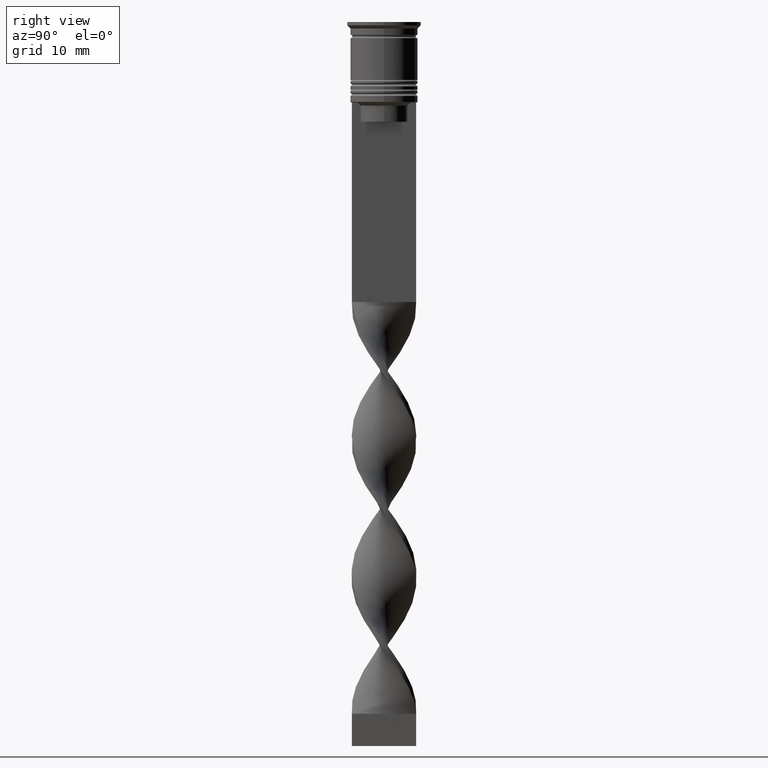
[diagram: clean part render]
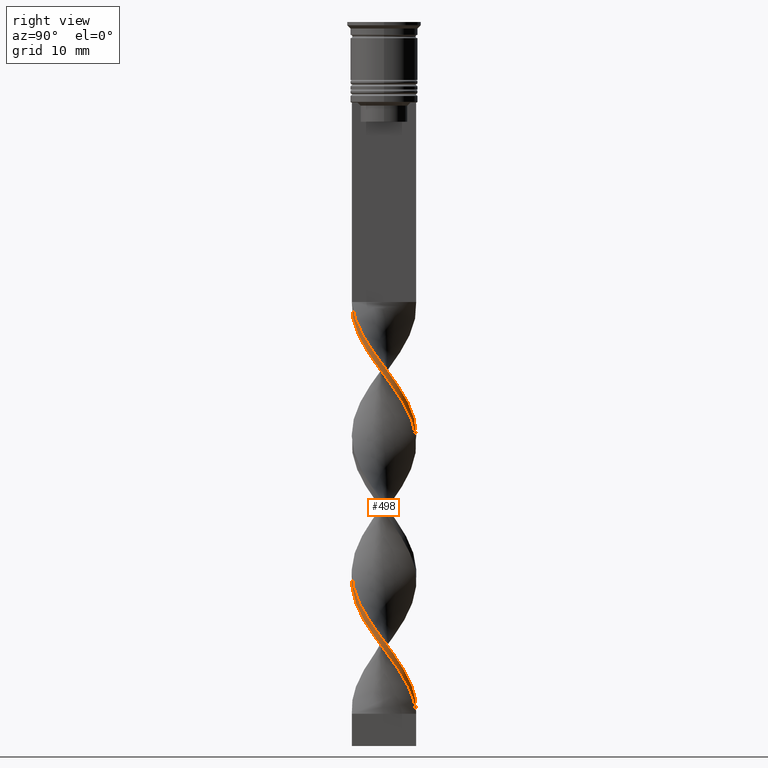
[diagram: same view with one face highlighted and labeled with its STEP entity id]
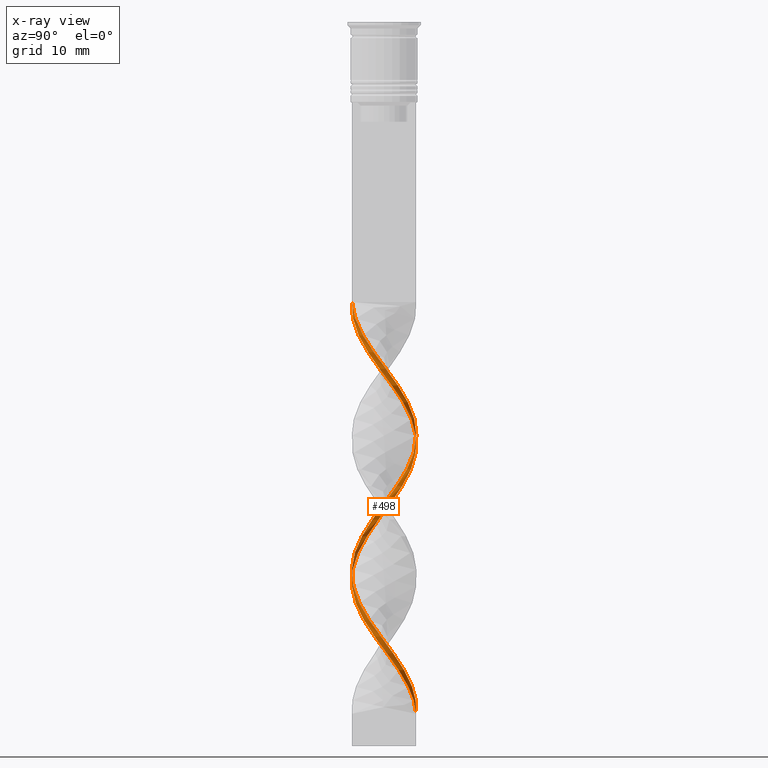
[diagram: x-ray of the same camera — body ghosted, the highlighted face saturated]
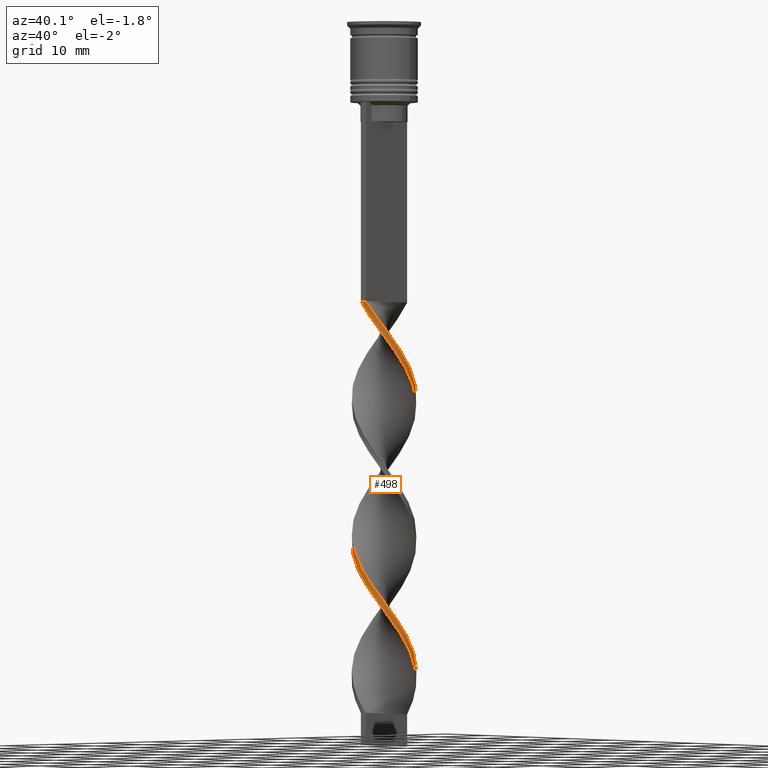
[diagram: same view with one face highlighted and labeled with its STEP entity id]
A machine part, right view. The second image highlights one B-rep face of the part: STEP entity #498.
The next image is the same camera in x-ray: the body ghosted, the highlighted face saturated — about 0% of this face is hidden behind the body in this view.
A second angle (auxiliary view) of the same face is appended — the face is thin or edge-on in the first view.
In plain terms, the highlighted face is a freeform B-spline surface patch.
Its self-contained STEP definition (entity closure, byte-faithful):
#1 = CARTESIAN_POINT ( 'NONE',  ( 0.7111074127247642984, 4.974366919274038068, -63.19230769230768630 ) ) ;
#21 = CARTESIAN_POINT ( 'NONE',  ( 4.398951702833859834, -2.428831800708950883, -50.06410256410256210 ) ) ;
#33 = CARTESIAN_POINT ( 'NONE',  ( 4.398951702833859834, -2.428831800708950883, -50.06410256410256210 ) ) ;
#45 = CARTESIAN_POINT ( 'NONE',  ( 4.225728863414809133, 2.786661774892327692, -57.44871794871794890 ) ) ;
#60 = CARTESIAN_POINT ( 'NONE',  ( 4.104038128678484831, 2.962961240565976428, -101.7564102564102484 ) ) ;
#68 = VERTEX_POINT ( 'NONE', #864 ) ;
#78 = CARTESIAN_POINT ( 'NONE',  ( -0.4999999999999993339, 4.999999999999999112, -107.5000000000000000 ) ) ;
#84 = CARTESIAN_POINT ( 'NONE',  ( 5.023812710617931110, -0.1063289642275889874, -53.34615384615383959 ) ) ;
#88 = CARTESIAN_POINT ( 'NONE',  ( 1.682049230150814534, -4.735051254986480274, -45.14102564102563520 ) ) ;
#103 = CARTESIAN_POINT ( 'NONE',  ( 4.497778769905805163, 2.240532556555384414, -99.29487179487178139 ) ) ;
#109 = CARTESIAN_POINT ( 'NONE',  ( 1.880887847392238132, 4.659641714287932501, -61.55128205128204399 ) ) ;
#119 = CARTESIAN_POINT ( 'NONE',  ( 0.1071099161113048537, 5.060710991611129472, -106.6794871794871824 ) ) ;
#126 = CARTESIAN_POINT ( 'NONE',  ( 0.5000000000000000000, -4.999999999999999112, -86.16666666666667140 ) ) ;
#137 = CARTESIAN_POINT ( 'NONE',  ( 1.107109916111302717, -4.939289008388868751, -86.98717948717948900 ) ) ;
#143 = CARTESIAN_POINT ( 'NONE',  ( -3.436045048790600909, -3.716969558312882782, -80.42307692307691980 ) ) ;
#144 = CARTESIAN_POINT ( 'NONE',  ( -0.5000000000000000000, -4.999999999999999112, -43.50000000000000000 ) ) ;
#156 = CARTESIAN_POINT ( 'NONE',  ( 3.830886956102703245, 3.251815666602606569, -100.9358974358974308 ) ) ;
#161 = CARTESIAN_POINT ( 'NONE',  ( -2.256988544190325019, 4.530813501584093572, -67.29487179487178139 ) ) ;
#176 = CARTESIAN_POINT ( 'NONE',  ( 1.107109916111304715, 4.939289008388868751, -64.01282051282051100 ) ) ;
#177 = CARTESIAN_POINT ( 'NONE',  ( 0.7111074127247624110, -4.974366919274038068, -45.14102564102563520 ) ) ;
#194 = CARTESIAN_POINT ( 'NONE',  ( 2.941357917118423870, -4.074115069975903225, -48.42307692307691269 ) ) ;
#195 = CARTESIAN_POINT ( 'NONE',  ( 4.225728863414809133, -2.786661774892328136, -93.55128205128204399 ) ) ;
#210 = CARTESIAN_POINT ( 'NONE',  ( -3.689868665289527172, -3.410992411735105367, -81.24358974358973740 ) ) ;
#211 = CARTESIAN_POINT ( 'NONE',  ( 2.256988544190328128, 4.530813501584091796, -62.37179487179486870 ) ) ;
#225 = CARTESIAN_POINT ( 'NONE',  ( -2.941357917118423870, 4.074115069975903225, -69.75641025641024839 ) ) ;
#226 = CARTESIAN_POINT ( 'NONE',  ( -3.436045048790596468, 3.716969558312887667, -70.57692307692306599 ) ) ;
#239 = CARTESIAN_POINT ( 'NONE',  ( 1.880887847392238132, 4.659641714287932501, -104.2179487179487012 ) ) ;
#240 = CARTESIAN_POINT ( 'NONE',  ( -4.497778769905805163, 2.240532556555386634, -73.03846153846153300 ) ) ;
#255 = CARTESIAN_POINT ( 'NONE',  ( 2.766343873045447488, 4.194918542244164605, -61.55128205128204399 ) ) ;
#260 = CARTESIAN_POINT ( 'NONE',  ( 0.5000000000000000000, -4.999999999999999112, -43.50000000000000000 ) ) ;
#273 = CARTESIAN_POINT ( 'NONE',  ( -4.852383656948341617, 1.305516313869971912, -73.03846153846153300 ) ) ;
#291 = CARTESIAN_POINT ( 'NONE',  ( 5.010902036907448398, 0.7163302668880174862, -98.47435897435896379 ) ) ;
#306 = CARTESIAN_POINT ( 'NONE',  ( 5.023812710617931110, 0.1063289642275872526, -97.65384615384614619 ) ) ;
#307 = CARTESIAN_POINT ( 'NONE',  ( 5.036723384328413822, 0.5036723384328410935, -54.16666666666666430 ) ) ;
#331 = CARTESIAN_POINT ( 'NONE',  ( 1.880887847392238132, 4.659641714287932501, -61.55128205128204399 ) ) ;
#369 = ORIENTED_EDGE ( 'NONE', *, *, #1020, .T. ) ;
#370 = CARTESIAN_POINT ( 'NONE',  ( -0.4999999999999993339, 4.999999999999999112, -107.5000000000000000 ) ) ;
#372 = CARTESIAN_POINT ( 'NONE',  ( 0.7111074127247642984, 4.974366919274038068, -63.19230769230768630 ) ) ;
#389 = CARTESIAN_POINT ( 'NONE',  ( 4.225728863414809133, 2.786661774892327692, -100.1153846153846132 ) ) ;
#395 = CARTESIAN_POINT ( 'NONE',  ( -4.769828676396804745, -1.694403338218441357, -77.14102564102563520 ) ) ;
#405 = CARTESIAN_POINT ( 'NONE',  ( -5.036723384328413822, -0.5036723384328405384, -75.50000000000000000 ) ) ;
#408 = VERTEX_POINT ( 'NONE', #3510 ) ;
#411 = CARTESIAN_POINT ( 'NONE',  ( 4.693865276989234836, -1.894702360851923117, -93.55128205128204399 ) ) ;
#421 = CARTESIAN_POINT ( 'NONE',  ( 4.903276030362607507, 1.099037838325641392, -97.65384615384614619 ) ) ;
#426 = CARTESIAN_POINT ( 'NONE',  ( 2.941357917118426091, 4.074115069975901449, -59.91025641025640880 ) ) ;
#444 = CARTESIAN_POINT ( 'NONE',  ( 0.7111074127247624110, -4.974366919274038068, -87.80769230769230660 ) ) ;
#460 = CARTESIAN_POINT ( 'NONE',  ( -4.225728863414807357, 2.786661774892329912, -72.21794871794871540 ) ) ;
#461 = CARTESIAN_POINT ( 'NONE',  ( 0.5000000000000006661, 4.999999999999999112, -64.83333333333332860 ) ) ;
#475 = CARTESIAN_POINT ( 'NONE',  ( 3.436045048790597800, -3.716969558312886335, -49.24358974358973740 ) ) ;
#476 = CARTESIAN_POINT ( 'NONE',  ( 3.275699201900567736, 3.859023582904236527, -103.3974358974358836 ) ) ;
#496 = CARTESIAN_POINT ( 'NONE',  ( -3.830886956102703245, 3.251815666602607013, -71.39743589743588359 ) ) ;
#497 = CARTESIAN_POINT ( 'NONE',  ( 3.689868665289526728, 3.410992411735105811, -102.5769230769230660 ) ) ;
#498 = ADVANCED_FACE ( 'NONE', ( #1922 ), #2173, .T. ) ;
#512 = CARTESIAN_POINT ( 'NONE',  ( -0.5000000000000000000, -4.999999999999999112, -43.50000000000000000 ) ) ;
#513 = CARTESIAN_POINT ( 'NONE',  ( 4.104038128678485720, 2.962961240565976428, -101.7564102564102484 ) ) ;
#525 = CARTESIAN_POINT ( 'NONE',  ( 1.107109916111304715, 4.939289008388868751, -106.6794871794871682 ) ) ;
#526 = CARTESIAN_POINT ( 'NONE',  ( -5.023812710617931110, -0.1063289642275845326, -76.32051282051281760 ) ) ;
#541 = CARTESIAN_POINT ( 'NONE',  ( -4.398951702833859834, 2.428831800708950883, -71.39743589743588359 ) ) ;
#567 = CARTESIAN_POINT ( 'NONE',  ( 2.766343873045447044, -4.194918542244165494, -46.78205128205127750 ) ) ;
#576 = CARTESIAN_POINT ( 'NONE',  ( 1.107109916111302717, -4.939289008388868751, -44.32051282051282470 ) ) ;
#620 = CARTESIAN_POINT ( 'NONE',  ( 3.689868665289525396, -3.410992411735107588, -48.42307692307691269 ) ) ;
#640 = CARTESIAN_POINT ( 'NONE',  ( 4.903276030362607507, 1.099037838325641392, -97.65384615384614619 ) ) ;
#660 = CARTESIAN_POINT ( 'NONE',  ( 4.225728863414809133, 2.786661774892327248, -57.44871794871794890 ) ) ;
#677 = CARTESIAN_POINT ( 'NONE',  ( 5.036723384328413822, 0.5036723384328410935, -96.83333333333332860 ) ) ;
#682 = CARTESIAN_POINT ( 'NONE',  ( 3.436045048790599132, 3.716969558312884558, -59.08974358974359120 ) ) ;
#691 = CARTESIAN_POINT ( 'NONE',  ( -4.769828676396803857, -1.694403338218441135, -77.14102564102563520 ) ) ;
#695 = CARTESIAN_POINT ( 'NONE',  ( 3.830886956102703245, 3.251815666602606569, -100.9358974358974308 ) ) ;
#708 = CARTESIAN_POINT ( 'NONE',  ( 2.256988544190325907, -4.530813501584092684, -88.62820512820513841 ) ) ;
#729 = CARTESIAN_POINT ( 'NONE',  ( 4.903276030362607507, -1.099037838325642946, -53.34615384615383959 ) ) ;
#731 = CARTESIAN_POINT ( 'NONE',  ( -1.107109916111305603, -4.939289008388868751, -85.34615384615385381 ) ) ;
#743 = CARTESIAN_POINT ( 'NONE',  ( 4.497778769905805163, -2.240532556555385746, -51.70512820512820440 ) ) ;
#744 = CARTESIAN_POINT ( 'NONE',  ( 4.104038128678485720, 2.962961240565976428, -59.08974358974358410 ) ) ;
#759 = CARTESIAN_POINT ( 'NONE',  ( 3.689868665289526728, 3.410992411735105811, -59.91025641025640880 ) ) ;
#760 = CARTESIAN_POINT ( 'NONE',  ( 2.941357917118423870, -4.074115069975903225, -91.08974358974359120 ) ) ;
#761 = CARTESIAN_POINT ( 'NONE',  ( -0.1666666666666660468, 4.999999999999999112, -107.5000000000000000 ) ) ;
#779 = CARTESIAN_POINT ( 'NONE',  ( -1.315104909338220551, 4.888022846936948440, -67.29487179487178139 ) ) ;
#780 = CARTESIAN_POINT ( 'NONE',  ( 4.852383656948341617, 1.305516313869969469, -99.29487179487178139 ) ) ;
#795 = CARTESIAN_POINT ( 'NONE',  ( 0.7111074127247624110, -4.974366919274038068, -45.14102564102563520 ) ) ;
#796 = CARTESIAN_POINT ( 'NONE',  ( 1.682049230150816088, 4.735051254986480274, -63.19230769230768630 ) ) ;
#808 = CARTESIAN_POINT ( 'NONE',  ( 2.256988544190327683, 4.530813501584091796, -105.0384615384615330 ) ) ;
#810 = CARTESIAN_POINT ( 'NONE',  ( 0.5000000000000000000, -4.999999999999999112, -43.50000000000000000 ) ) ;
#829 = CARTESIAN_POINT ( 'NONE',  ( 5.036723384328412934, -0.5036723384328417596, -96.83333333333332860 ) ) ;
#853 = CARTESIAN_POINT ( 'NONE',  ( 5.010902036907448398, -0.7163302668880181523, -52.52564102564102910 ) ) ;
#864 = CARTESIAN_POINT ( 'NONE',  ( 0.5000000000000006661, 4.999999999999999112, -107.5000000000000000 ) ) ;
#869 = CARTESIAN_POINT ( 'NONE',  ( 4.903276030362607507, -1.099037838325642946, -96.01282051282051100 ) ) ;
#870 = CARTESIAN_POINT ( 'NONE',  ( 2.941357917118426091, 4.074115069975901449, -59.91025641025640880 ) ) ;
#916 = CARTESIAN_POINT ( 'NONE',  ( -2.941357917118426535, -4.074115069975901449, -81.24358974358973740 ) ) ;
#930 = CARTESIAN_POINT ( 'NONE',  ( 2.446670785446252605, 4.431260581638918339, -103.3974358974358836 ) ) ;
#937 = CARTESIAN_POINT ( 'NONE',  ( 5.023812710617931110, -0.1063289642275889874, -96.01282051282051100 ) ) ;
#947 = CARTESIAN_POINT ( 'NONE',  ( 1.682049230150814534, -4.735051254986480274, -87.80769230769230660 ) ) ;
#952 = CARTESIAN_POINT ( 'NONE',  ( -4.225728863414810910, -2.786661774892325028, -78.78205128205127039 ) ) ;
#963 = CARTESIAN_POINT ( 'NONE',  ( 2.941357917118426091, 4.074115069975901449, -102.5769230769230660 ) ) ;
#967 = CARTESIAN_POINT ( 'NONE',  ( 2.766343873045447044, -4.194918542244165494, -89.44871794871794179 ) ) ;
#980 = CARTESIAN_POINT ( 'NONE',  ( 3.436045048790599132, 3.716969558312884558, -101.7564102564102484 ) ) ;
#981 = CARTESIAN_POINT ( 'NONE',  ( 1.315104909338222328, -4.888022846936947552, -45.96153846153845990 ) ) ;
#993 = CARTESIAN_POINT ( 'NONE',  ( 0.5000000000000006661, 4.999999999999999112, -64.83333333333332860 ) ) ;
#995 = B_SPLINE_CURVE_WITH_KNOTS ( 'NONE', 3,
 ( #1341, #761, #2426, #2396 ),
 .UNSPECIFIED., .F., .F.,
 ( 4, 4 ),
 ( 0.000000000000000000, 1.000000000000000000 ),
 .UNSPECIFIED. ) ;
#1013 = CARTESIAN_POINT ( 'NONE',  ( -1.880887847392236800, 4.659641714287933389, -68.11538461538459899 ) ) ;
#1014 = CARTESIAN_POINT ( 'NONE',  ( 3.689868665289526728, 3.410992411735105811, -59.91025641025640880 ) ) ;
#1020 = EDGE_CURVE ( 'NONE', #408, #68, #1658, .T. ) ;
#1027 = CARTESIAN_POINT ( 'NONE',  ( -3.436045048790596468, 3.716969558312887667, -70.57692307692306599 ) ) ;
#1028 = CARTESIAN_POINT ( 'NONE',  ( -0.5000000000000000000, -4.999999999999999112, -86.16666666666667140 ) ) ;
#1040 = CARTESIAN_POINT ( 'NONE',  ( 1.880887847392237244, -4.659641714287933389, -46.78205128205127750 ) ) ;
#1041 = CARTESIAN_POINT ( 'NONE',  ( 4.903276030362607507, -1.099037838325642946, -96.01282051282051100 ) ) ;
#1059 = CARTESIAN_POINT ( 'NONE',  ( -3.275699201900568625, -3.859023582904236527, -82.06410256410255499 ) ) ;
#1060 = CARTESIAN_POINT ( 'NONE',  ( -5.036723384328413822, 0.5036723384328424258, -75.50000000000000000 ) ) ;
#1074 = CARTESIAN_POINT ( 'NONE',  ( 4.497778769905805163, -2.240532556555385746, -94.37179487179486159 ) ) ;
#1075 = CARTESIAN_POINT ( 'NONE',  ( 5.023812710617931110, -0.1063289642275889874, -53.34615384615383959 ) ) ;
#1076 = EDGE_CURVE ( 'NONE', #3278, #3394, #1315, .T. ) ;
#1090 = CARTESIAN_POINT ( 'NONE',  ( 0.1071099161113048537, 5.060710991611129472, -64.01282051282051100 ) ) ;
#1105 = CARTESIAN_POINT ( 'NONE',  ( 2.941357917118423870, -4.074115069975903225, -91.08974358974359120 ) ) ;
#1107 = CARTESIAN_POINT ( 'NONE',  ( 4.693865276989234836, -1.894702360851923340, -50.88461538461537970 ) ) ;
#1128 = CARTESIAN_POINT ( 'NONE',  ( 3.689868665289526728, 3.410992411735105811, -102.5769230769230660 ) ) ;
#1137 = CARTESIAN_POINT ( 'NONE',  ( 0.5000000000000000000, -4.999999999999999112, -43.50000000000000000 ) ) ;
#1145 = CARTESIAN_POINT ( 'NONE',  ( 2.256988544190326351, -4.530813501584092684, -45.96153846153845990 ) ) ;
#1162 = CARTESIAN_POINT ( 'NONE',  ( -4.903276030362609283, -1.099037838325638727, -76.32051282051281760 ) ) ;
#1169 = CARTESIAN_POINT ( 'NONE',  ( -5.023812710617931110, 0.1063289642275907221, -74.67948717948718240 ) ) ;
#1184 = CARTESIAN_POINT ( 'NONE',  ( 4.104038128678484831, -2.962961240565978205, -91.91025641025643722 ) ) ;
#1189 = CARTESIAN_POINT ( 'NONE',  ( -0.1071099161113053949, -5.060710991611130360, -85.34615384615383959 ) ) ;
#1191 = CARTESIAN_POINT ( 'NONE',  ( 3.830886956102703245, -3.251815666602607013, -50.06410256410256210 ) ) ;
#1208 = CARTESIAN_POINT ( 'NONE',  ( -3.275699201900567736, 3.859023582904237415, -68.93589743589743080 ) ) ;
#1217 = CARTESIAN_POINT ( 'NONE',  ( -2.941357917118426535, -4.074115069975901449, -81.24358974358973740 ) ) ;
#1222 = CARTESIAN_POINT ( 'NONE',  ( 4.903276030362607507, 1.099037838325641392, -54.98717948717948190 ) ) ;
#1239 = CARTESIAN_POINT ( 'NONE',  ( 0.5000000000000000000, -4.999999999999999112, -86.16666666666667140 ) ) ;
#1243 = CARTESIAN_POINT ( 'NONE',  ( 0.1071099161113048398, 5.060710991611130360, -64.01282051282051100 ) ) ;
#1257 = CARTESIAN_POINT ( 'NONE',  ( -4.104038128678486608, -2.962961240565973764, -80.42307692307691980 ) ) ;
#1258 = CARTESIAN_POINT ( 'NONE',  ( 2.446670785446252161, -4.431260581638919227, -47.60256410256409509 ) ) ;
#1272 = CARTESIAN_POINT ( 'NONE',  ( -5.010902036907449286, -0.7163302668880155988, -77.14102564102563520 ) ) ;
#1273 = CARTESIAN_POINT ( 'NONE',  ( -1.682049230150818975, -4.735051254986478497, -84.52564102564103621 ) ) ;
#1293 = CARTESIAN_POINT ( 'NONE',  ( -2.766343873045450152, -4.194918542244163717, -82.88461538461537259 ) ) ;
#1294 = CARTESIAN_POINT ( 'NONE',  ( -5.010902036907448398, -0.7163302668880155988, -77.14102564102563520 ) ) ;
#1308 = CARTESIAN_POINT ( 'NONE',  ( 3.830886956102703245, -3.251815666602607013, -50.06410256410256210 ) ) ;
#1309 = CARTESIAN_POINT ( 'NONE',  ( -2.256988544190328572, -4.530813501584091796, -83.70512820512820440 ) ) ;
#1315 =( BOUNDED_CURVE ( )  B_SPLINE_CURVE ( 2, ( #810, #576, #3280, #1145, #1431, #1370, #620, #1947, #21, #1107, #2458, #853, #1075, #307, #1645, #2440, #1392, #45, #2774, #3296, #870, #3032, #331, #1700, #1, #1090, #1413, #2500, #2236, #2517, #2161, #3242, #1890, #2977, #541, #2720, #273, #1354, #3351, #405, #1162, #691, #2257, #3334, #3127, #2580, #1217, #1987, #2311, #2278, #1776, #2876, #1239, #137, #947, #2562, #1489, #2331, #1449, #1184, #2061, #2540, #3142, #3391, #2860, #677, #421, #1506, #103, #389, #156, #3408, #963, #930, #2004, #3111, #2047, #119, #78 ),
 .UNSPECIFIED., .F., .T. ) 
 B_SPLINE_CURVE_WITH_KNOTS ( ( 3, 2, 2, 2, 2, 2, 2, 2, 2, 2, 2, 2, 2, 2, 2, 2, 2, 2, 2, 2, 2, 2, 2, 2, 2, 2, 2, 2, 2, 2, 2, 2, 2, 2, 2, 2, 2, 2, 2, 3 ),
 ( 0.000000000000000000, 0.01923076923076923184, 0.03846153846153846367, 0.05769230769230768857, 0.07692307692307692735, 0.09615384615384615918, 0.1153846153846153771, 0.1346153846153846090, 0.1538461538461538547, 0.1730769230769230449, 0.1923076923076923184, 0.2115384615384615363, 0.2307692307692307543, 0.2500000000000000000, 0.2692307692307692180, 0.2884615384615384359, 0.3076923076923077094, 0.3269230769230769273, 0.3461538461538460898, 0.3653846153846153633, 0.3846153846153846367, 0.4038461538461539102, 0.4230769230769230727, 0.4423076923076922906, 0.4615384615384615086, 0.4807692307692307820, 0.5000000000000000000, 0.5192307692307692735, 0.5384615384615384359, 0.5576923076923077094, 0.5769230769230768718, 0.5961538461538461453, 0.6153846153846154188, 0.6346153846153845812, 0.6538461538461538547, 0.6730769230769230171, 0.6923076923076921796, 0.7115384615384615641, 0.7307692307692307265, 0.7500000000000000000 ),
 .UNSPECIFIED. ) 
 CURVE ( )  GEOMETRIC_REPRESENTATION_ITEM ( )  RATIONAL_B_SPLINE_CURVE ( ( 1.000000000000000000, 0.9927088740980539727, 1.000000000000000000, 0.9927088740980539727, 1.000000000000000000, 0.9927088740980539727, 1.000000000000000000, 0.9927088740980539727, 1.000000000000000000, 0.9927088740980539727, 1.000000000000000000, 0.9927088740980539727, 1.000000000000000000, 0.9927088740980539727, 1.000000000000000000, 0.9927088740980539727, 1.000000000000000000, 0.9927088740980539727, 1.000000000000000000, 0.9927088740980539727, 1.000000000000000000, 0.9927088740980539727, 1.000000000000000000, 0.9927088740980539727, 1.000000000000000000, 0.9927088740980539727, 1.000000000000000000, 0.9927088740980539727, 1.000000000000000000, 0.9927088740980539727, 1.000000000000000000, 0.9927088740980539727, 1.000000000000000000, 0.9927088740980539727, 1.000000000000000000, 0.9927088740980539727, 1.000000000000000000, 0.9927088740980539727, 1.000000000000000000, 0.9927088740980539727, 1.000000000000000000, 0.9927088740980539727, 1.000000000000000000, 0.9927088740980539727, 1.000000000000000000, 0.9927088740980539727, 1.000000000000000000, 0.9927088740980539727, 1.000000000000000000, 0.9927088740980539727, 1.000000000000000000, 0.9927088740980539727, 1.000000000000000000, 0.9927088740980539727, 1.000000000000000000, 0.9927088740980539727, 1.000000000000000000, 0.9927088740980539727, 1.000000000000000000, 0.9927088740980539727, 1.000000000000000000, 0.9927088740980539727, 1.000000000000000000, 0.9927088740980539727, 1.000000000000000000, 0.9927088740980539727, 1.000000000000000000, 0.9927088740980539727, 1.000000000000000000, 0.9927088740980539727, 1.000000000000000000, 0.9927088740980539727, 1.000000000000000000, 0.9927088740980539727, 1.000000000000000000, 0.9927088740980539727, 1.000000000000000000, 0.9927088740980539727, 1.000000000000000000 ) ) 
 REPRESENTATION_ITEM ( '' )  );
#1320 = CARTESIAN_POINT ( 'NONE',  ( 5.023812710617931110, 0.1063289642275872526, -54.98717948717948190 ) ) ;
#1321 = CARTESIAN_POINT ( 'NONE',  ( -0.7111074127247609677, 4.974366919274038956, -66.47435897435896379 ) ) ;
#1339 = CARTESIAN_POINT ( 'NONE',  ( 3.830886956102703245, -3.251815666602607013, -92.73076923076922640 ) ) ;
#1341 = CARTESIAN_POINT ( 'NONE',  ( -0.4999999999999993339, 4.999999999999999112, -107.5000000000000000 ) ) ;
#1353 = CARTESIAN_POINT ( 'NONE',  ( 3.275699201900568180, 3.859023582904236527, -103.3974358974358694 ) ) ;
#1354 = CARTESIAN_POINT ( 'NONE',  ( -5.010902036907447510, 0.7163302668880177082, -73.85897435897436480 ) ) ;
#1370 = CARTESIAN_POINT ( 'NONE',  ( 3.275699201900567292, -3.859023582904237415, -47.60256410256409509 ) ) ;
#1392 = CARTESIAN_POINT ( 'NONE',  ( 4.497778769905805163, 2.240532556555384414, -56.62820512820513130 ) ) ;
#1413 = CARTESIAN_POINT ( 'NONE',  ( -0.4999999999999993339, 4.999999999999999112, -64.83333333333332860 ) ) ;
#1422 = CARTESIAN_POINT ( 'NONE',  ( 3.689868665289525396, -3.410992411735107588, -48.42307692307691269 ) ) ;
#1431 = CARTESIAN_POINT ( 'NONE',  ( 2.766343873045447044, -4.194918542244165494, -46.78205128205127750 ) ) ;
#1436 = CARTESIAN_POINT ( 'NONE',  ( 4.852383656948341617, -1.305516313869971246, -51.70512820512820440 ) ) ;
#1449 = CARTESIAN_POINT ( 'NONE',  ( 3.689868665289525396, -3.410992411735107588, -91.08974358974359120 ) ) ;
#1455 = ORIENTED_EDGE ( 'NONE', *, *, #3168, .T. ) ;
#1458 = CARTESIAN_POINT ( 'NONE',  ( -1.315104909338224770, -4.888022846936946664, -83.70512820512820440 ) ) ;
#1480 = CARTESIAN_POINT ( 'NONE',  ( -1.107109916111301828, 4.939289008388868751, -65.65384615384614619 ) ) ;
#1489 = CARTESIAN_POINT ( 'NONE',  ( 2.766343873045447044, -4.194918542244165494, -89.44871794871794179 ) ) ;
#1495 = CARTESIAN_POINT ( 'NONE',  ( 4.852383656948341617, -1.305516313869971246, -94.37179487179486159 ) ) ;
#1506 = CARTESIAN_POINT ( 'NONE',  ( 4.769828676396803857, 1.694403338218442689, -98.47435897435896379 ) ) ;
#1511 = CARTESIAN_POINT ( 'NONE',  ( 1.682049230150814534, -4.735051254986480274, -87.80769230769230660 ) ) ;
#1528 = CARTESIAN_POINT ( 'NONE',  ( 0.7111074127247642984, 4.974366919274038068, -105.8589743589743506 ) ) ;
#1543 = CARTESIAN_POINT ( 'NONE',  ( 2.446670785446252605, 4.431260581638919227, -103.3974358974358694 ) ) ;
#1544 = CARTESIAN_POINT ( 'NONE',  ( -4.693865276989234836, -1.894702360851920231, -78.78205128205127039 ) ) ;
#1559 = CARTESIAN_POINT ( 'NONE',  ( 4.769828676396802969, -1.694403338218443800, -52.52564102564103621 ) ) ;
#1560 = CARTESIAN_POINT ( 'NONE',  ( 3.275699201900567736, 3.859023582904236527, -60.73076923076922640 ) ) ;
#1579 = CARTESIAN_POINT ( 'NONE',  ( -1.107109916111305381, -4.939289008388868751, -85.34615384615383959 ) ) ;
#1580 = CARTESIAN_POINT ( 'NONE',  ( 4.398951702833859834, 2.428831800708949995, -100.9358974358974308 ) ) ;
#1583 = DIRECTION ( 'NONE',  ( -1.000000000000000000, 0.000000000000000000, 0.000000000000000000 ) ) ;
#1591 = CARTESIAN_POINT ( 'NONE',  ( 5.036723384328412934, -0.5036723384328417596, -54.16666666666665719 ) ) ;
#1593 = CARTESIAN_POINT ( 'NONE',  ( 5.036723384328413822, -0.5036723384328417596, -54.16666666666666430 ) ) ;
#1606 = CARTESIAN_POINT ( 'NONE',  ( 4.225728863414809133, -2.786661774892327692, -93.55128205128204399 ) ) ;
#1607 = CARTESIAN_POINT ( 'NONE',  ( -3.689868665289527172, -3.410992411735105367, -81.24358974358973740 ) ) ;
#1645 = CARTESIAN_POINT ( 'NONE',  ( 4.903276030362607507, 1.099037838325641392, -54.98717948717948190 ) ) ;
#1654 = CARTESIAN_POINT ( 'NONE',  ( 4.104038128678483943, -2.962961240565977761, -49.24358974358973740 ) ) ;
#1658 =( BOUNDED_CURVE ( )  B_SPLINE_CURVE ( 2, ( #144, #2604, #177, #981, #2066, #1258, #2350, #3079, #1191, #3357, #2686, #2672, #2406, #1593, #3442, #2380, #2148, #1876, #2128, #744, #1014, #1560, #255, #211, #796, #1812, #461, #2364, #1321, #3489, #2652, #3456, #1861, #226, #3211, #2099, #240, #2964, #3164, #1060, #526, #1294, #3471, #1544, #3227, #2637, #1607, #1826, #2395, #1309, #1273, #731, #1028, #2699, #2112, #2952, #2933, #3196, #760, #2425, #1339, #195, #1840, #3506, #1041, #2080, #2902, #2917, #780, #3183, #1580, #513, #497, #476, #3015, #2179, #3257, #2219, #1663 ),
 .UNSPECIFIED., .F., .T. ) 
 B_SPLINE_CURVE_WITH_KNOTS ( ( 3, 2, 2, 2, 2, 2, 2, 2, 2, 2, 2, 2, 2, 2, 2, 2, 2, 2, 2, 2, 2, 2, 2, 2, 2, 2, 2, 2, 2, 2, 2, 2, 2, 2, 2, 2, 2, 2, 2, 3 ),
 ( 0.000000000000000000, 0.01923076923076923184, 0.03846153846153846367, 0.05769230769230768857, 0.07692307692307692735, 0.09615384615384615918, 0.1153846153846153771, 0.1346153846153846090, 0.1538461538461538547, 0.1730769230769230449, 0.1923076923076923184, 0.2115384615384615363, 0.2307692307692307543, 0.2500000000000000000, 0.2692307692307692180, 0.2884615384615384359, 0.3076923076923077094, 0.3269230769230769273, 0.3461538461538460898, 0.3653846153846153633, 0.3846153846153846367, 0.4038461538461539102, 0.4230769230769230727, 0.4423076923076922906, 0.4615384615384615086, 0.4807692307692307820, 0.5000000000000000000, 0.5192307692307692735, 0.5384615384615384359, 0.5576923076923077094, 0.5769230769230768718, 0.5961538461538461453, 0.6153846153846154188, 0.6346153846153845812, 0.6538461538461538547, 0.6730769230769230171, 0.6923076923076921796, 0.7115384615384615641, 0.7307692307692307265, 0.7500000000000000000 ),
 .UNSPECIFIED. ) 
 CURVE ( )  GEOMETRIC_REPRESENTATION_ITEM ( )  RATIONAL_B_SPLINE_CURVE ( ( 1.000000000000000000, 0.9927088740980539727, 1.000000000000000000, 0.9927088740980539727, 1.000000000000000000, 0.9927088740980539727, 1.000000000000000000, 0.9927088740980539727, 1.000000000000000000, 0.9927088740980539727, 1.000000000000000000, 0.9927088740980539727, 1.000000000000000000, 0.9927088740980539727, 1.000000000000000000, 0.9927088740980539727, 1.000000000000000000, 0.9927088740980539727, 1.000000000000000000, 0.9927088740980539727, 1.000000000000000000, 0.9927088740980539727, 1.000000000000000000, 0.9927088740980539727, 1.000000000000000000, 0.9927088740980539727, 1.000000000000000000, 0.9927088740980539727, 1.000000000000000000, 0.9927088740980539727, 1.000000000000000000, 0.9927088740980539727, 1.000000000000000000, 0.9927088740980539727, 1.000000000000000000, 0.9927088740980539727, 1.000000000000000000, 0.9927088740980539727, 1.000000000000000000, 0.9927088740980539727, 1.000000000000000000, 0.9927088740980539727, 1.000000000000000000, 0.9927088740980539727, 1.000000000000000000, 0.9927088740980539727, 1.000000000000000000, 0.9927088740980539727, 1.000000000000000000, 0.9927088740980539727, 1.000000000000000000, 0.9927088740980539727, 1.000000000000000000, 0.9927088740980539727, 1.000000000000000000, 0.9927088740980539727, 1.000000000000000000, 0.9927088740980539727, 1.000000000000000000, 0.9927088740980539727, 1.000000000000000000, 0.9927088740980539727, 1.000000000000000000, 0.9927088740980539727, 1.000000000000000000, 0.9927088740980539727, 1.000000000000000000, 0.9927088740980539727, 1.000000000000000000, 0.9927088740980539727, 1.000000000000000000, 0.9927088740980539727, 1.000000000000000000, 0.9927088740980539727, 1.000000000000000000, 0.9927088740980539727, 1.000000000000000000, 0.9927088740980539727, 1.000000000000000000 ) ) 
 REPRESENTATION_ITEM ( '' )  );
#1663 = CARTESIAN_POINT ( 'NONE',  ( 0.5000000000000006661, 4.999999999999999112, -107.5000000000000000 ) ) ;
#1700 = CARTESIAN_POINT ( 'NONE',  ( 1.315104909338224104, 4.888022846936946664, -62.37179487179486870 ) ) ;
#1723 = CARTESIAN_POINT ( 'NONE',  ( 4.693865276989234836, -1.894702360851923117, -50.88461538461538680 ) ) ;
#1744 = CARTESIAN_POINT ( 'NONE',  ( -3.689868665289524952, 3.410992411735108476, -69.75641025641024839 ) ) ;
#1765 = CARTESIAN_POINT ( 'NONE',  ( 1.315104909338224326, 4.888022846936946664, -62.37179487179486870 ) ) ;
#1776 = CARTESIAN_POINT ( 'NONE',  ( -0.7111074127247671850, -4.974366919274038068, -84.52564102564103621 ) ) ;
#1780 = CARTESIAN_POINT ( 'NONE',  ( 5.010902036907449286, -0.7163302668880181523, -52.52564102564103621 ) ) ;
#1793 = CARTESIAN_POINT ( 'NONE',  ( 4.497778769905805163, 2.240532556555384414, -56.62820512820513130 ) ) ;
#1811 = CARTESIAN_POINT ( 'NONE',  ( 0.1071099161113025638, -5.060710991611130360, -44.32051282051282470 ) ) ;
#1812 = CARTESIAN_POINT ( 'NONE',  ( 1.107109916111304937, 4.939289008388868751, -64.01282051282051100 ) ) ;
#1825 = CARTESIAN_POINT ( 'NONE',  ( -2.446670785446251273, 4.431260581638920115, -68.93589743589743080 ) ) ;
#1826 = CARTESIAN_POINT ( 'NONE',  ( -3.275699201900568625, -3.859023582904236527, -82.06410256410255499 ) ) ;
#1834 = EDGE_CURVE ( 'NONE', #3394, #68, #995, .T. ) ;
#1839 = CARTESIAN_POINT ( 'NONE',  ( 1.315104909338222106, -4.888022846936947552, -88.62820512820513841 ) ) ;
#1840 = CARTESIAN_POINT ( 'NONE',  ( 4.497778769905805163, -2.240532556555385746, -94.37179487179486159 ) ) ;
#1860 = CARTESIAN_POINT ( 'NONE',  ( -5.036723384328412934, 0.5036723384328424258, -75.49999999999998579 ) ) ;
#1861 = CARTESIAN_POINT ( 'NONE',  ( -2.941357917118423870, 4.074115069975903225, -69.75641025641024839 ) ) ;
#1875 = CARTESIAN_POINT ( 'NONE',  ( -4.852383656948341617, -1.305516313869969913, -77.96153846153845279 ) ) ;
#1876 = CARTESIAN_POINT ( 'NONE',  ( 4.693865276989234836, 1.894702360851922895, -57.44871794871794890 ) ) ;
#1890 = CARTESIAN_POINT ( 'NONE',  ( -3.689868665289524952, 3.410992411735108476, -69.75641025641024839 ) ) ;
#1911 = CARTESIAN_POINT ( 'NONE',  ( 4.693865276989234836, 1.894702360851922673, -100.1153846153846274 ) ) ;
#1922 = FACE_OUTER_BOUND ( 'NONE', #2046, .T. ) ;
#1947 = CARTESIAN_POINT ( 'NONE',  ( 4.104038128678484831, -2.962961240565978205, -49.24358974358974450 ) ) ;
#1987 = CARTESIAN_POINT ( 'NONE',  ( -2.446670785446253493, -4.431260581638918339, -82.06410256410255499 ) ) ;
#1992 = CARTESIAN_POINT ( 'NONE',  ( -0.7111074127247671850, -4.974366919274038068, -84.52564102564103621 ) ) ;
#2004 = CARTESIAN_POINT ( 'NONE',  ( 1.880887847392238132, 4.659641714287932501, -104.2179487179487012 ) ) ;
#2010 = CARTESIAN_POINT ( 'NONE',  ( 4.769828676396803857, 1.694403338218442912, -98.47435897435896379 ) ) ;
#2034 = CARTESIAN_POINT ( 'NONE',  ( -2.446670785446253493, -4.431260581638919227, -82.06410256410255499 ) ) ;
#2046 = EDGE_LOOP ( 'NONE', ( #1455, #369, #2954, #3223 ) ) ;
#2047 = CARTESIAN_POINT ( 'NONE',  ( 0.7111074127247642984, 4.974366919274038068, -105.8589743589743506 ) ) ;
#2051 = CARTESIAN_POINT ( 'NONE',  ( 4.497778769905805163, 2.240532556555384414, -99.29487179487178139 ) ) ;
#2061 = CARTESIAN_POINT ( 'NONE',  ( 4.398951702833859834, -2.428831800708950883, -92.73076923076922640 ) ) ;
#2065 = CARTESIAN_POINT ( 'NONE',  ( 3.275699201900567736, -3.859023582904237415, -90.26923076923075939 ) ) ;
#2066 = CARTESIAN_POINT ( 'NONE',  ( 1.880887847392237244, -4.659641714287933389, -46.78205128205127750 ) ) ;
#2078 = CARTESIAN_POINT ( 'NONE',  ( 0.1071099161113025638, -5.060710991611130360, -86.98717948717948900 ) ) ;
#2080 = CARTESIAN_POINT ( 'NONE',  ( 5.036723384328413822, -0.5036723384328417596, -96.83333333333332860 ) ) ;
#2098 = CARTESIAN_POINT ( 'NONE',  ( 2.256988544190327683, 4.530813501584091796, -62.37179487179486870 ) ) ;
#2099 = CARTESIAN_POINT ( 'NONE',  ( -4.225728863414807357, 2.786661774892330357, -72.21794871794871540 ) ) ;
#2111 = CARTESIAN_POINT ( 'NONE',  ( 2.446670785446252161, -4.431260581638920115, -90.26923076923075939 ) ) ;
#2112 = CARTESIAN_POINT ( 'NONE',  ( 0.7111074127247624110, -4.974366919274038068, -87.80769230769230660 ) ) ;
#2127 = CARTESIAN_POINT ( 'NONE',  ( -4.497778769905805163, 2.240532556555386634, -73.03846153846153300 ) ) ;
#2128 = CARTESIAN_POINT ( 'NONE',  ( 4.398951702833859834, 2.428831800708949995, -58.26923076923076650 ) ) ;
#2147 = CARTESIAN_POINT ( 'NONE',  ( 2.766343873045447488, 4.194918542244164605, -61.55128205128204399 ) ) ;
#2148 = CARTESIAN_POINT ( 'NONE',  ( 4.852383656948341617, 1.305516313869969469, -56.62820512820513130 ) ) ;
#2160 = CARTESIAN_POINT ( 'NONE',  ( 2.766343873045447488, 4.194918542244164605, -104.2179487179487012 ) ) ;
#2161 = CARTESIAN_POINT ( 'NONE',  ( -2.766343873045446600, 4.194918542244165494, -68.11538461538459899 ) ) ;
#2173 =( BOUNDED_SURFACE ( )  B_SPLINE_SURFACE ( 1, 2, ( 
 ( #1137, #2526, #88, #2211, #567, #2784, #1422, #1654, #33, #1723, #1436, #1780, #84, #3095, #1222, #2301, #1793, #660, #2884, #682, #426, #2335, #109, #1765, #372, #1243, #3078, #1480, #2852, #161, #2568, #1208, #1744, #2547, #3373, #2836, #2523, #2814, #1169, #2865, #2264, #395, #2317, #952, #3339, #143, #916, #2034, #3356, #1458, #1992, #1189, #126, #2283, #1511, #708, #967, #2065, #3117, #2603, #3412, #411, #1495, #2586, #937, #3396, #640, #2010, #2051, #3132, #695, #980, #3145, #1543, #239, #3424, #1528, #2636, #3470 ),
 ( #512, #1811, #795, #2363, #1040, #2916, #194, #475, #1308, #2349, #743, #1559, #729, #1591, #1320, #3163, #2931, #2650, #3195, #2671, #759, #3441, #2147, #2098, #2685, #176, #993, #2901, #3209, #779, #1013, #1825, #225, #1027, #496, #460, #2127, #2405, #2620, #1860, #3487, #1272, #1875, #3182, #2951, #1257, #210, #1059, #1293, #2394, #3226, #1579, #2379, #2078, #444, #1839, #3455, #2111, #1105, #2748, #2235, #1606, #1074, #3256, #869, #829, #306, #291, #2439, #1911, #3312, #60, #1128, #1353, #2160, #808, #2698, #525, #2976 ) ),
 .UNSPECIFIED., .F., .F., .F. ) 
 B_SPLINE_SURFACE_WITH_KNOTS ( ( 2, 2 ),
 ( 3, 2, 2, 2, 2, 2, 2, 2, 2, 2, 2, 2, 2, 2, 2, 2, 2, 2, 2, 2, 2, 2, 2, 2, 2, 2, 2, 2, 2, 2, 2, 2, 2, 2, 2, 2, 2, 2, 2, 3 ),
 ( 0.000000000000000000, 1.000000000000000000 ),
 ( 0.000000000000000000, 0.01923076923076923184, 0.03846153846153846367, 0.05769230769230769551, 0.07692307692307692735, 0.09615384615384615918, 0.1153846153846153910, 0.1346153846153846090, 0.1538461538461538547, 0.1730769230769230727, 0.1923076923076923184, 0.2115384615384615363, 0.2307692307692307820, 0.2500000000000000000, 0.2692307692307692180, 0.2884615384615384359, 0.3076923076923077094, 0.3269230769230769273, 0.3461538461538461453, 0.3653846153846153633, 0.3846153846153846367, 0.4038461538461538547, 0.4230769230769230727, 0.4423076923076922906, 0.4615384615384615641, 0.4807692307692307820, 0.5000000000000000000, 0.5192307692307692735, 0.5384615384615384359, 0.5576923076923077094, 0.5769230769230768718, 0.5961538461538461453, 0.6153846153846154188, 0.6346153846153845812, 0.6538461538461538547, 0.6730769230769231282, 0.6923076923076922906, 0.7115384615384615641, 0.7307692307692307265, 0.7500000000000000000 ),
 .UNSPECIFIED. ) 
 GEOMETRIC_REPRESENTATION_ITEM ( )  RATIONAL_B_SPLINE_SURFACE ( (
 ( 1.000000000000000000, 0.9927088740980539727, 1.000000000000000000, 0.9927088740980539727, 1.000000000000000000, 0.9927088740980539727, 1.000000000000000000, 0.9927088740980539727, 1.000000000000000000, 0.9927088740980539727, 1.000000000000000000, 0.9927088740980539727, 1.000000000000000000, 0.9927088740980539727, 1.000000000000000000, 0.9927088740980539727, 1.000000000000000000, 0.9927088740980539727, 1.000000000000000000, 0.9927088740980539727, 1.000000000000000000, 0.9927088740980539727, 1.000000000000000000, 0.9927088740980539727, 1.000000000000000000, 0.9927088740980539727, 1.000000000000000000, 0.9927088740980539727, 1.000000000000000000, 0.9927088740980539727, 1.000000000000000000, 0.9927088740980539727, 1.000000000000000000, 0.9927088740980539727, 1.000000000000000000, 0.9927088740980539727, 1.000000000000000000, 0.9927088740980539727, 1.000000000000000000, 0.9927088740980539727, 1.000000000000000000, 0.9927088740980539727, 1.000000000000000000, 0.9927088740980539727, 1.000000000000000000, 0.9927088740980539727, 1.000000000000000000, 0.9927088740980539727, 1.000000000000000000, 0.9927088740980539727, 1.000000000000000000, 0.9927088740980539727, 1.000000000000000000, 0.9927088740980539727, 1.000000000000000000, 0.9927088740980539727, 1.000000000000000000, 0.9927088740980539727, 1.000000000000000000, 0.9927088740980539727, 1.000000000000000000, 0.9927088740980539727, 1.000000000000000000, 0.9927088740980539727, 1.000000000000000000, 0.9927088740980539727, 1.000000000000000000, 0.9927088740980539727, 1.000000000000000000, 0.9927088740980539727, 1.000000000000000000, 0.9927088740980539727, 1.000000000000000000, 0.9927088740980539727, 1.000000000000000000, 0.9927088740980539727, 1.000000000000000000, 0.9927088740980539727, 1.000000000000000000),
 ( 1.000000000000000000, 0.9927088740980539727, 1.000000000000000000, 0.9927088740980539727, 1.000000000000000000, 0.9927088740980539727, 1.000000000000000000, 0.9927088740980539727, 1.000000000000000000, 0.9927088740980539727, 1.000000000000000000, 0.9927088740980539727, 1.000000000000000000, 0.9927088740980539727, 1.000000000000000000, 0.9927088740980539727, 1.000000000000000000, 0.9927088740980539727, 1.000000000000000000, 0.9927088740980539727, 1.000000000000000000, 0.9927088740980539727, 1.000000000000000000, 0.9927088740980539727, 1.000000000000000000, 0.9927088740980539727, 1.000000000000000000, 0.9927088740980539727, 1.000000000000000000, 0.9927088740980539727, 1.000000000000000000, 0.9927088740980539727, 1.000000000000000000, 0.9927088740980539727, 1.000000000000000000, 0.9927088740980539727, 1.000000000000000000, 0.9927088740980539727, 1.000000000000000000, 0.9927088740980539727, 1.000000000000000000, 0.9927088740980539727, 1.000000000000000000, 0.9927088740980539727, 1.000000000000000000, 0.9927088740980539727, 1.000000000000000000, 0.9927088740980539727, 1.000000000000000000, 0.9927088740980539727, 1.000000000000000000, 0.9927088740980539727, 1.000000000000000000, 0.9927088740980539727, 1.000000000000000000, 0.9927088740980539727, 1.000000000000000000, 0.9927088740980539727, 1.000000000000000000, 0.9927088740980539727, 1.000000000000000000, 0.9927088740980539727, 1.000000000000000000, 0.9927088740980539727, 1.000000000000000000, 0.9927088740980539727, 1.000000000000000000, 0.9927088740980539727, 1.000000000000000000, 0.9927088740980539727, 1.000000000000000000, 0.9927088740980539727, 1.000000000000000000, 0.9927088740980539727, 1.000000000000000000, 0.9927088740980539727, 1.000000000000000000, 0.9927088740980539727, 1.000000000000000000) ) ) 
 REPRESENTATION_ITEM ( '' )  SURFACE ( )  );
#2179 = CARTESIAN_POINT ( 'NONE',  ( 2.256988544190328128, 4.530813501584091796, -105.0384615384615188 ) ) ;
#2195 = VECTOR ( 'NONE', #1583, 1000.000000000000000 ) ;
#2211 = CARTESIAN_POINT ( 'NONE',  ( 2.256988544190325907, -4.530813501584092684, -45.96153846153845279 ) ) ;
#2219 = CARTESIAN_POINT ( 'NONE',  ( 1.107109916111304937, 4.939289008388868751, -106.6794871794871824 ) ) ;
#2235 = CARTESIAN_POINT ( 'NONE',  ( 3.830886956102703245, -3.251815666602607013, -92.73076923076922640 ) ) ;
#2236 = CARTESIAN_POINT ( 'NONE',  ( -1.682049230150812980, 4.735051254986481162, -66.47435897435896379 ) ) ;
#2257 = CARTESIAN_POINT ( 'NONE',  ( -4.497778769905805163, -2.240532556555384858, -77.96153846153845279 ) ) ;
#2264 = CARTESIAN_POINT ( 'NONE',  ( -4.903276030362609283, -1.099037838325638727, -76.32051282051281760 ) ) ;
#2278 = CARTESIAN_POINT ( 'NONE',  ( -1.315104909338224548, -4.888022846936946664, -83.70512820512820440 ) ) ;
#2283 = CARTESIAN_POINT ( 'NONE',  ( 1.107109916111302717, -4.939289008388868751, -86.98717948717948900 ) ) ;
#2301 = CARTESIAN_POINT ( 'NONE',  ( 4.769828676396803857, 1.694403338218442912, -55.80769230769230660 ) ) ;
#2311 = CARTESIAN_POINT ( 'NONE',  ( -1.880887847392241019, -4.659641714287931613, -82.88461538461537259 ) ) ;
#2317 = CARTESIAN_POINT ( 'NONE',  ( -4.497778769905805163, -2.240532556555384858, -77.96153846153845279 ) ) ;
#2331 = CARTESIAN_POINT ( 'NONE',  ( 3.275699201900567292, -3.859023582904237415, -90.26923076923077360 ) ) ;
#2335 = CARTESIAN_POINT ( 'NONE',  ( 2.446670785446252605, 4.431260581638919227, -60.73076923076922640 ) ) ;
#2349 = CARTESIAN_POINT ( 'NONE',  ( 4.225728863414809133, -2.786661774892327692, -50.88461538461538680 ) ) ;
#2350 = CARTESIAN_POINT ( 'NONE',  ( 2.941357917118423870, -4.074115069975903225, -48.42307692307691269 ) ) ;
#2363 = CARTESIAN_POINT ( 'NONE',  ( 1.315104909338222106, -4.888022846936947552, -45.96153846153845279 ) ) ;
#2364 = CARTESIAN_POINT ( 'NONE',  ( -0.1071099161113013842, 5.060710991611129472, -65.65384615384614619 ) ) ;
#2379 = CARTESIAN_POINT ( 'NONE',  ( -0.5000000000000000000, -4.999999999999999112, -86.16666666666667140 ) ) ;
#2380 = CARTESIAN_POINT ( 'NONE',  ( 5.010902036907447510, 0.7163302668880174862, -55.80769230769230660 ) ) ;
#2394 = CARTESIAN_POINT ( 'NONE',  ( -2.256988544190328128, -4.530813501584091796, -83.70512820512820440 ) ) ;
#2395 = CARTESIAN_POINT ( 'NONE',  ( -2.766343873045450152, -4.194918542244163717, -82.88461538461537259 ) ) ;
#2396 = CARTESIAN_POINT ( 'NONE',  ( 0.5000000000000006661, 4.999999999999999112, -107.5000000000000000 ) ) ;
#2405 = CARTESIAN_POINT ( 'NONE',  ( -4.769828676396803857, 1.694403338218443356, -73.85897435897436480 ) ) ;
#2406 = CARTESIAN_POINT ( 'NONE',  ( 4.903276030362607507, -1.099037838325642946, -53.34615384615383959 ) ) ;
#2425 = CARTESIAN_POINT ( 'NONE',  ( 3.436045048790597800, -3.716969558312886335, -91.91025641025643722 ) ) ;
#2426 = CARTESIAN_POINT ( 'NONE',  ( 0.1666666666666673513, 4.999999999999999112, -107.5000000000000000 ) ) ;
#2439 = CARTESIAN_POINT ( 'NONE',  ( 4.852383656948341617, 1.305516313869969469, -99.29487179487178139 ) ) ;
#2440 = CARTESIAN_POINT ( 'NONE',  ( 4.769828676396803857, 1.694403338218442689, -55.80769230769230660 ) ) ;
#2458 = CARTESIAN_POINT ( 'NONE',  ( 4.852383656948341617, -1.305516313869971246, -51.70512820512820440 ) ) ;
#2500 = CARTESIAN_POINT ( 'NONE',  ( -1.107109916111301606, 4.939289008388868751, -65.65384615384614619 ) ) ;
#2517 = CARTESIAN_POINT ( 'NONE',  ( -2.256988544190325019, 4.530813501584093572, -67.29487179487178139 ) ) ;
#2523 = CARTESIAN_POINT ( 'NONE',  ( -4.852383656948341617, 1.305516313869971912, -73.03846153846153300 ) ) ;
#2526 = CARTESIAN_POINT ( 'NONE',  ( 1.107109916111302717, -4.939289008388868751, -44.32051282051282470 ) ) ;
#2540 = CARTESIAN_POINT ( 'NONE',  ( 4.693865276989234836, -1.894702360851923340, -93.55128205128204399 ) ) ;
#2547 = CARTESIAN_POINT ( 'NONE',  ( -4.104038128678483055, 2.962961240565979093, -70.57692307692306599 ) ) ;
#2562 = CARTESIAN_POINT ( 'NONE',  ( 2.256988544190326351, -4.530813501584092684, -88.62820512820512420 ) ) ;
#2568 = CARTESIAN_POINT ( 'NONE',  ( -2.766343873045446600, 4.194918542244165494, -68.11538461538459899 ) ) ;
#2580 = CARTESIAN_POINT ( 'NONE',  ( -3.436045048790600909, -3.716969558312882782, -80.42307692307691980 ) ) ;
#2586 = CARTESIAN_POINT ( 'NONE',  ( 5.010902036907449286, -0.7163302668880181523, -95.19230769230769340 ) ) ;
#2603 = CARTESIAN_POINT ( 'NONE',  ( 4.104038128678483943, -2.962961240565977761, -91.91025641025643722 ) ) ;
#2604 = CARTESIAN_POINT ( 'NONE',  ( 0.1071099161113025777, -5.060710991611129472, -44.32051282051282470 ) ) ;
#2620 = CARTESIAN_POINT ( 'NONE',  ( -4.903276030362607507, 1.099037838325644723, -74.67948717948718240 ) ) ;
#2636 = CARTESIAN_POINT ( 'NONE',  ( 0.1071099161113048398, 5.060710991611130360, -106.6794871794871682 ) ) ;
#2637 = CARTESIAN_POINT ( 'NONE',  ( -4.104038128678487496, -2.962961240565973764, -80.42307692307691980 ) ) ;
#2650 = CARTESIAN_POINT ( 'NONE',  ( 4.693865276989234836, 1.894702360851922673, -57.44871794871794890 ) ) ;
#2652 = CARTESIAN_POINT ( 'NONE',  ( -1.880887847392236800, 4.659641714287933389, -68.11538461538459899 ) ) ;
#2671 = CARTESIAN_POINT ( 'NONE',  ( 4.104038128678484831, 2.962961240565976428, -59.08974358974359120 ) ) ;
#2672 = CARTESIAN_POINT ( 'NONE',  ( 4.769828676396802969, -1.694403338218443578, -52.52564102564102910 ) ) ;
#2685 = CARTESIAN_POINT ( 'NONE',  ( 1.682049230150816088, 4.735051254986480274, -63.19230769230768630 ) ) ;
#2686 = CARTESIAN_POINT ( 'NONE',  ( 4.497778769905805163, -2.240532556555385746, -51.70512820512820440 ) ) ;
#2698 = CARTESIAN_POINT ( 'NONE',  ( 1.682049230150816088, 4.735051254986480274, -105.8589743589743506 ) ) ;
#2699 = CARTESIAN_POINT ( 'NONE',  ( 0.1071099161113025777, -5.060710991611129472, -86.98717948717948900 ) ) ;
#2720 = CARTESIAN_POINT ( 'NONE',  ( -4.693865276989233060, 1.894702360851926004, -72.21794871794871540 ) ) ;
#2748 = CARTESIAN_POINT ( 'NONE',  ( 3.436045048790597800, -3.716969558312886335, -91.91025641025643722 ) ) ;
#2774 = CARTESIAN_POINT ( 'NONE',  ( 3.830886956102703245, 3.251815666602606569, -58.26923076923076650 ) ) ;
#2784 = CARTESIAN_POINT ( 'NONE',  ( 3.275699201900567736, -3.859023582904237415, -47.60256410256408799 ) ) ;
#2814 = CARTESIAN_POINT ( 'NONE',  ( -5.010902036907448398, 0.7163302668880177082, -73.85897435897436480 ) ) ;
#2836 = CARTESIAN_POINT ( 'NONE',  ( -4.693865276989233060, 1.894702360851926226, -72.21794871794871540 ) ) ;
#2852 = CARTESIAN_POINT ( 'NONE',  ( -1.682049230150812980, 4.735051254986481162, -66.47435897435896379 ) ) ;
#2860 = CARTESIAN_POINT ( 'NONE',  ( 5.023812710617931110, -0.1063289642275889874, -96.01282051282051100 ) ) ;
#2865 = CARTESIAN_POINT ( 'NONE',  ( -5.036723384328412934, -0.5036723384328404274, -75.49999999999998579 ) ) ;
#2876 = CARTESIAN_POINT ( 'NONE',  ( -0.1071099161113053949, -5.060710991611129472, -85.34615384615385381 ) ) ;
#2884 = CARTESIAN_POINT ( 'NONE',  ( 3.830886956102703245, 3.251815666602606569, -58.26923076923076650 ) ) ;
#2901 = CARTESIAN_POINT ( 'NONE',  ( -0.1071099161113013842, 5.060710991611130360, -65.65384615384614619 ) ) ;
#2902 = CARTESIAN_POINT ( 'NONE',  ( 5.023812710617931110, 0.1063289642275872526, -97.65384615384614619 ) ) ;
#2916 = CARTESIAN_POINT ( 'NONE',  ( 2.446670785446252161, -4.431260581638920115, -47.60256410256408799 ) ) ;
#2917 = CARTESIAN_POINT ( 'NONE',  ( 5.010902036907447510, 0.7163302668880174862, -98.47435897435896379 ) ) ;
#2931 = CARTESIAN_POINT ( 'NONE',  ( 4.852383656948341617, 1.305516313869969469, -56.62820512820513130 ) ) ;
#2933 = CARTESIAN_POINT ( 'NONE',  ( 1.880887847392237244, -4.659641714287933389, -89.44871794871794179 ) ) ;
#2938 = LINE ( 'NONE', #260, #2195 ) ;
#2951 = CARTESIAN_POINT ( 'NONE',  ( -4.398951702833860722, -2.428831800708949551, -79.60256410256410220 ) ) ;
#2952 = CARTESIAN_POINT ( 'NONE',  ( 1.315104909338222328, -4.888022846936947552, -88.62820512820512420 ) ) ;
#2954 = ORIENTED_EDGE ( 'NONE', *, *, #1834, .F. ) ;
#2964 = CARTESIAN_POINT ( 'NONE',  ( -4.769828676396803857, 1.694403338218443134, -73.85897435897436480 ) ) ;
#2976 = CARTESIAN_POINT ( 'NONE',  ( 0.5000000000000006661, 4.999999999999999112, -107.5000000000000000 ) ) ;
#2977 = CARTESIAN_POINT ( 'NONE',  ( -4.104038128678483943, 2.962961240565979537, -70.57692307692306599 ) ) ;
#3015 = CARTESIAN_POINT ( 'NONE',  ( 2.766343873045447488, 4.194918542244164605, -104.2179487179487012 ) ) ;
#3032 = CARTESIAN_POINT ( 'NONE',  ( 2.446670785446252605, 4.431260581638918339, -60.73076923076922640 ) ) ;
#3078 = CARTESIAN_POINT ( 'NONE',  ( -0.4999999999999993339, 4.999999999999999112, -64.83333333333332860 ) ) ;
#3079 = CARTESIAN_POINT ( 'NONE',  ( 3.436045048790597800, -3.716969558312886335, -49.24358974358974450 ) ) ;
#3095 = CARTESIAN_POINT ( 'NONE',  ( 5.036723384328412934, 0.5036723384328410935, -54.16666666666665719 ) ) ;
#3111 = CARTESIAN_POINT ( 'NONE',  ( 1.315104909338224104, 4.888022846936946664, -105.0384615384615188 ) ) ;
#3117 = CARTESIAN_POINT ( 'NONE',  ( 3.689868665289525396, -3.410992411735107588, -91.08974358974359120 ) ) ;
#3127 = CARTESIAN_POINT ( 'NONE',  ( -3.830886956102704577, -3.251815666602606125, -79.60256410256410220 ) ) ;
#3132 = CARTESIAN_POINT ( 'NONE',  ( 4.225728863414809133, 2.786661774892327248, -100.1153846153846274 ) ) ;
#3142 = CARTESIAN_POINT ( 'NONE',  ( 4.852383656948341617, -1.305516313869971246, -94.37179487179486159 ) ) ;
#3145 = CARTESIAN_POINT ( 'NONE',  ( 2.941357917118426091, 4.074115069975901449, -102.5769230769230660 ) ) ;
#3163 = CARTESIAN_POINT ( 'NONE',  ( 5.010902036907448398, 0.7163302668880174862, -55.80769230769230660 ) ) ;
#3164 = CARTESIAN_POINT ( 'NONE',  ( -4.903276030362607507, 1.099037838325644723, -74.67948717948718240 ) ) ;
#3168 = EDGE_CURVE ( 'NONE', #3278, #408, #2938, .T. ) ;
#3182 = CARTESIAN_POINT ( 'NONE',  ( -4.693865276989234836, -1.894702360851920009, -78.78205128205127039 ) ) ;
#3183 = CARTESIAN_POINT ( 'NONE',  ( 4.693865276989234836, 1.894702360851922895, -100.1153846153846132 ) ) ;
#3195 = CARTESIAN_POINT ( 'NONE',  ( 4.398951702833859834, 2.428831800708949995, -58.26923076923076650 ) ) ;
#3196 = CARTESIAN_POINT ( 'NONE',  ( 2.446670785446252161, -4.431260581638919227, -90.26923076923077360 ) ) ;
#3209 = CARTESIAN_POINT ( 'NONE',  ( -0.7111074127247609677, 4.974366919274038956, -66.47435897435896379 ) ) ;
#3211 = CARTESIAN_POINT ( 'NONE',  ( -3.830886956102703245, 3.251815666602607013, -71.39743589743588359 ) ) ;
#3223 = ORIENTED_EDGE ( 'NONE', *, *, #1076, .F. ) ;
#3226 = CARTESIAN_POINT ( 'NONE',  ( -1.682049230150818975, -4.735051254986478497, -84.52564102564103621 ) ) ;
#3227 = CARTESIAN_POINT ( 'NONE',  ( -4.398951702833860722, -2.428831800708949551, -79.60256410256410220 ) ) ;
#3242 = CARTESIAN_POINT ( 'NONE',  ( -3.275699201900567292, 3.859023582904237415, -68.93589743589743080 ) ) ;
#3256 = CARTESIAN_POINT ( 'NONE',  ( 4.769828676396802969, -1.694403338218443800, -95.19230769230769340 ) ) ;
#3257 = CARTESIAN_POINT ( 'NONE',  ( 1.682049230150816088, 4.735051254986480274, -105.8589743589743506 ) ) ;
#3278 = VERTEX_POINT ( 'NONE', #3283 ) ;
#3280 = CARTESIAN_POINT ( 'NONE',  ( 1.682049230150814534, -4.735051254986480274, -45.14102564102563520 ) ) ;
#3283 = CARTESIAN_POINT ( 'NONE',  ( 0.5000000000000000000, -4.999999999999999112, -43.50000000000000000 ) ) ;
#3296 = CARTESIAN_POINT ( 'NONE',  ( 3.436045048790599132, 3.716969558312884558, -59.08974358974358410 ) ) ;
#3312 = CARTESIAN_POINT ( 'NONE',  ( 4.398951702833859834, 2.428831800708949995, -100.9358974358974308 ) ) ;
#3334 = CARTESIAN_POINT ( 'NONE',  ( -4.225728863414810910, -2.786661774892325028, -78.78205128205127039 ) ) ;
#3339 = CARTESIAN_POINT ( 'NONE',  ( -3.830886956102704577, -3.251815666602606125, -79.60256410256410220 ) ) ;
#3351 = CARTESIAN_POINT ( 'NONE',  ( -5.023812710617931110, 0.1063289642275907221, -74.67948717948718240 ) ) ;
#3356 = CARTESIAN_POINT ( 'NONE',  ( -1.880887847392241019, -4.659641714287931613, -82.88461538461537259 ) ) ;
#3357 = CARTESIAN_POINT ( 'NONE',  ( 4.225728863414809133, -2.786661774892328136, -50.88461538461537970 ) ) ;
#3373 = CARTESIAN_POINT ( 'NONE',  ( -4.398951702833859834, 2.428831800708950883, -71.39743589743588359 ) ) ;
#3391 = CARTESIAN_POINT ( 'NONE',  ( 5.010902036907448398, -0.7163302668880181523, -95.19230769230769340 ) ) ;
#3394 = VERTEX_POINT ( 'NONE', #370 ) ;
#3396 = CARTESIAN_POINT ( 'NONE',  ( 5.036723384328412934, 0.5036723384328410935, -96.83333333333332860 ) ) ;
#3408 = CARTESIAN_POINT ( 'NONE',  ( 3.436045048790599132, 3.716969558312884558, -101.7564102564102484 ) ) ;
#3412 = CARTESIAN_POINT ( 'NONE',  ( 4.398951702833859834, -2.428831800708950883, -92.73076923076922640 ) ) ;
#3424 = CARTESIAN_POINT ( 'NONE',  ( 1.315104909338224326, 4.888022846936946664, -105.0384615384615330 ) ) ;
#3441 = CARTESIAN_POINT ( 'NONE',  ( 3.275699201900568180, 3.859023582904236527, -60.73076923076922640 ) ) ;
#3442 = CARTESIAN_POINT ( 'NONE',  ( 5.023812710617931110, 0.1063289642275872526, -54.98717948717948190 ) ) ;
#3455 = CARTESIAN_POINT ( 'NONE',  ( 1.880887847392237244, -4.659641714287933389, -89.44871794871794179 ) ) ;
#3456 = CARTESIAN_POINT ( 'NONE',  ( -2.446670785446251273, 4.431260581638919227, -68.93589743589743080 ) ) ;
#3470 = CARTESIAN_POINT ( 'NONE',  ( -0.4999999999999993339, 4.999999999999999112, -107.5000000000000000 ) ) ;
#3471 = CARTESIAN_POINT ( 'NONE',  ( -4.852383656948341617, -1.305516313869969913, -77.96153846153845279 ) ) ;
#3487 = CARTESIAN_POINT ( 'NONE',  ( -5.023812710617931110, -0.1063289642275845326, -76.32051282051281760 ) ) ;
#3489 = CARTESIAN_POINT ( 'NONE',  ( -1.315104909338220551, 4.888022846936948440, -67.29487179487178139 ) ) ;
#3506 = CARTESIAN_POINT ( 'NONE',  ( 4.769828676396802969, -1.694403338218443578, -95.19230769230769340 ) ) ;
#3510 = CARTESIAN_POINT ( 'NONE',  ( -0.5000000000000000000, -4.999999999999999112, -43.50000000000000000 ) ) ;